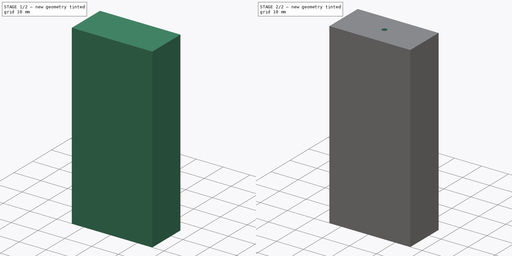
[diagram: build sequence overview — one tinted view per stage of 2, left to right]
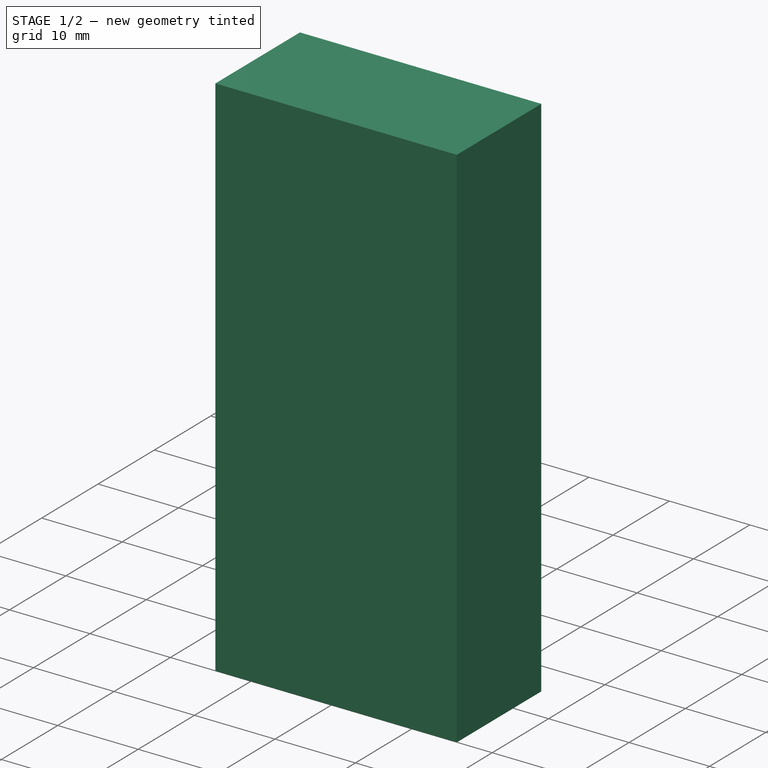
[diagram: stage 1 of 2 — iso view after this stage's code; geometry added in this stage tinted green]
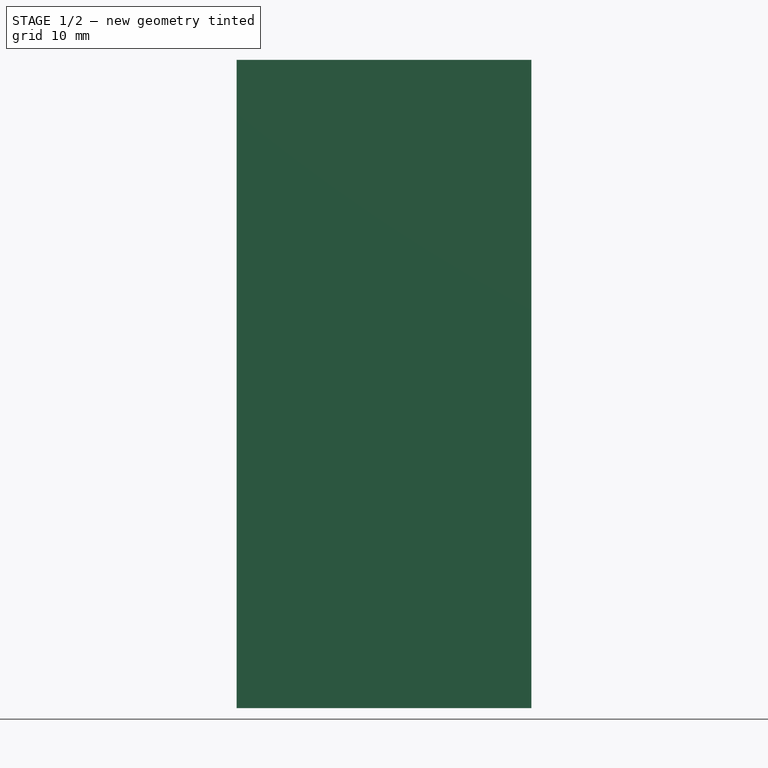
[diagram: stage 1 of 2 — front view after this stage's code; geometry added in this stage tinted green]
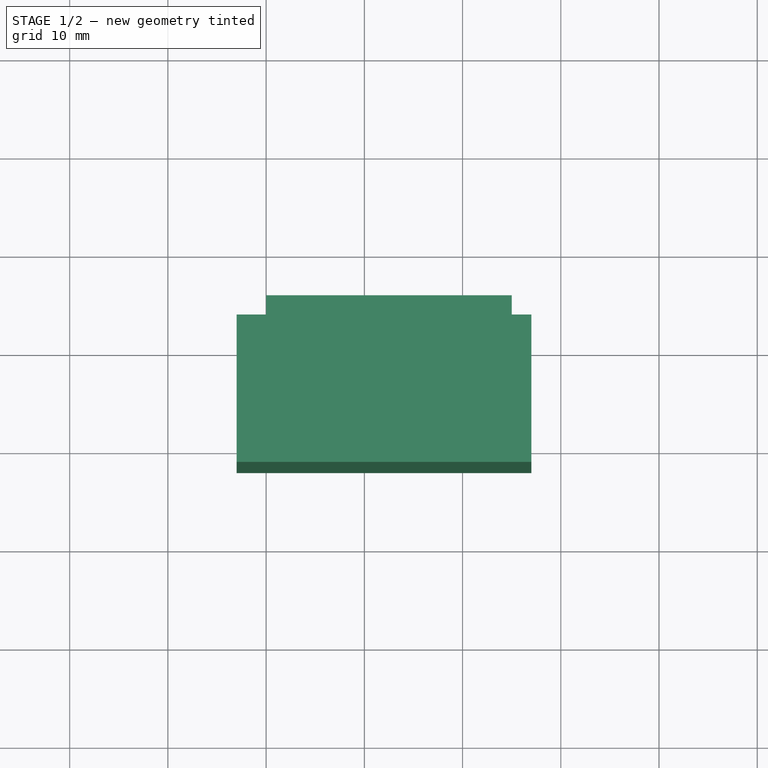
[diagram: stage 1 of 2 — top view after this stage's code; geometry added in this stage tinted green]
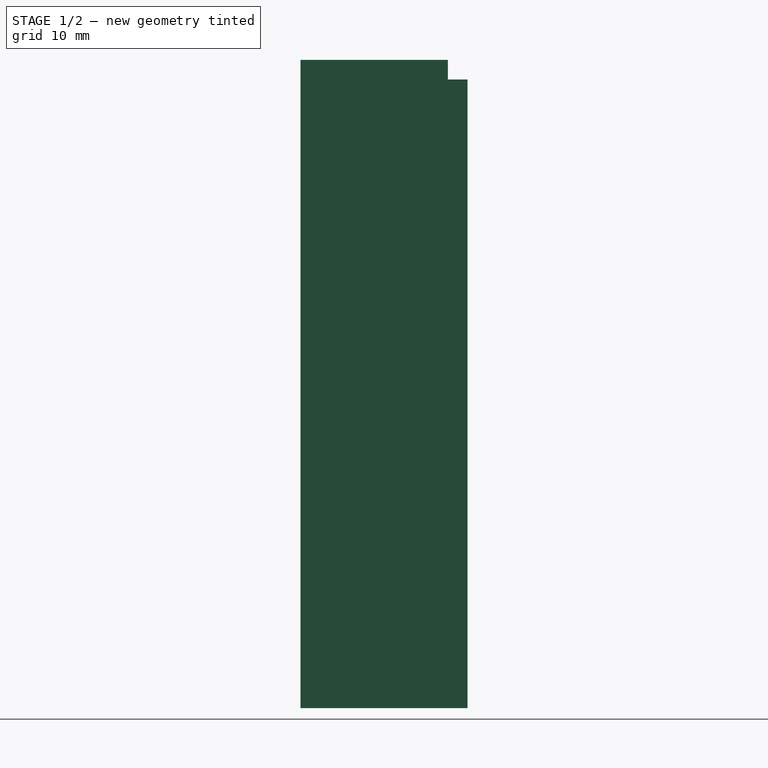
[diagram: stage 1 of 2 — right view after this stage's code; geometry added in this stage tinted green]
FCSTD DOCUMENT  (FreeCAD 0.14R3700 (Git))
Label: Tensor
License: CC-BY 3.0
LicenseURL: http://creativecommons.org/licenses/by/3.0/
objects: Part::Box×2, Part::Cut×1, Sketcher::SketchObject×1, PartDesign::Pocket×1
note: 6 computed .brp shape members not serialized (recipe doc carries the construction recipe); baked Part::Feature solids carry a one-line shape summary decoded from their .brp

FEATURE [Part::Box] Box  label="Cubo"
  Height = 64
  Length = 25
  Width = 15
FEATURE [Part::Box] Box001  label="Cubo001"
  Height = 66
  Length = 30
  Placement = pos=(-3,-2,0) rot=(0,0,1;0rad)
  Width = 15
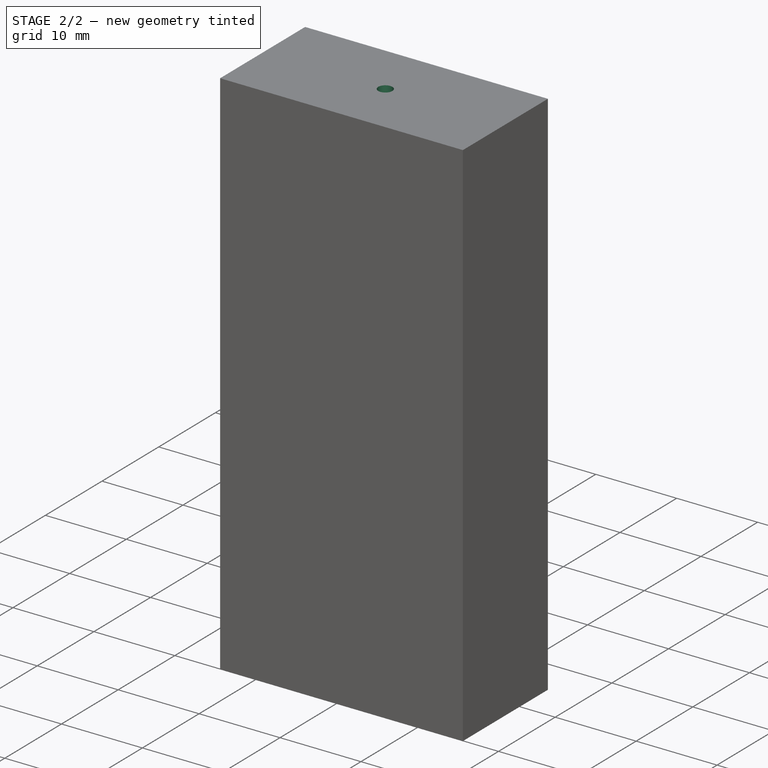
[diagram: stage 2 of 2 — iso view after this stage's code; geometry added in this stage tinted green]
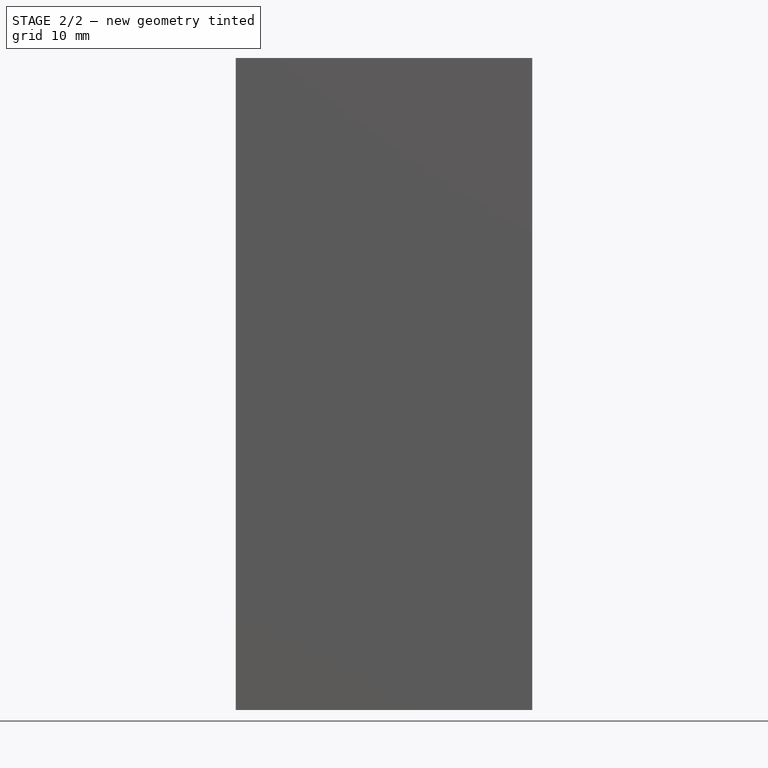
[diagram: stage 2 of 2 — front view after this stage's code; geometry added in this stage tinted green]
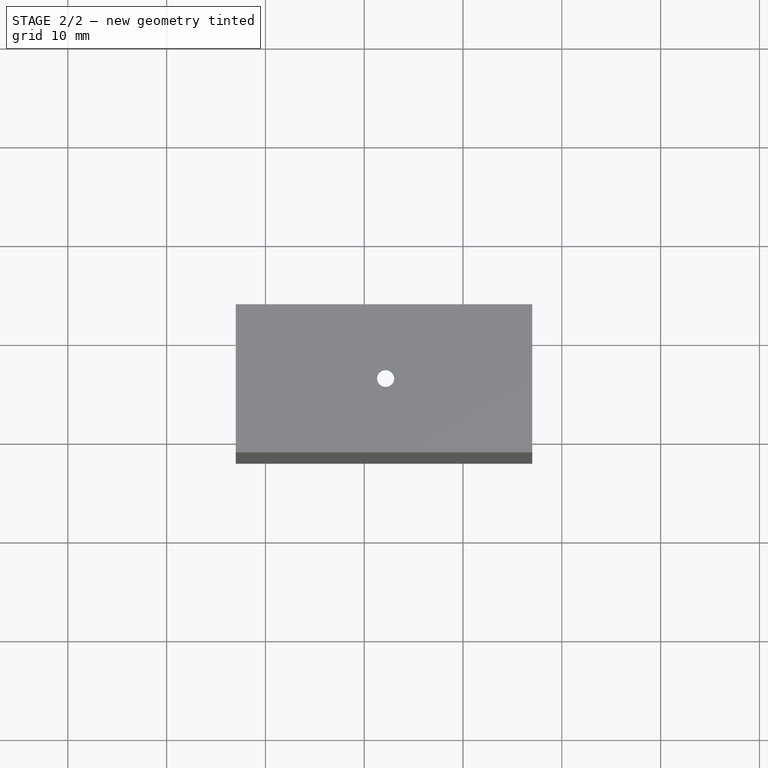
[diagram: stage 2 of 2 — top view after this stage's code; geometry added in this stage tinted green]
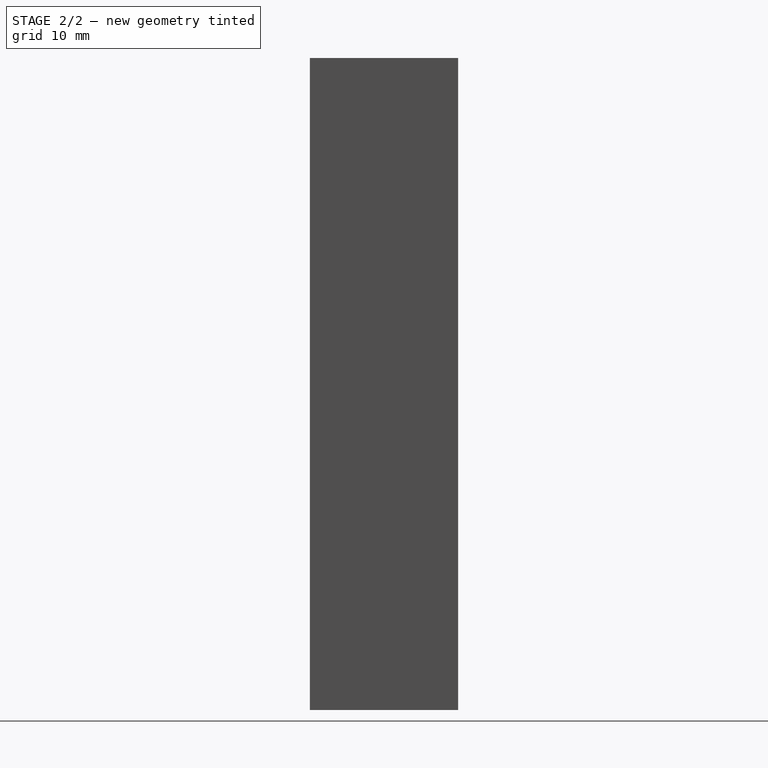
[diagram: stage 2 of 2 — right view after this stage's code; geometry added in this stage tinted green]
FEATURE [Part::Cut] Cut
  Base = -> Box001
  Tool = -> Box
FEATURE [Sketcher::SketchObject] Sketch
  ExternalGeometry = -> [Cut]
  Placement = pos=(0,0,66) rot=(0,0,1;0rad)
  Support = -> Cut [Face3]
  sketch-geometry (3):
    g0: Circle CenterX=12.1666 CenterY=5.5 CenterZ=0 NormalX=0 NormalY=0 NormalZ=1 Radius=0.87
    g1: LineSegment [constr] StartX=12.1666 StartY=5.5 StartZ=0 EndX=12.1666 EndY=-2 EndZ=0
    g2: LineSegment [constr] StartX=-3 StartY=5.5 StartZ=0 EndX=12.1666 EndY=5.5 EndZ=0
  constraints (9):
    c: Radius(g0) = 0.87
    c: Horizontal(g2)
    c: Vertical(g1)
    c: PointOnObject(g2,g-5)
    c: PointOnObject(g1,g-4)
    c: Coincident(g1,g2)
    c: Coincident(g0,g1)
    c: DistanceY(g1) = -7.5
    c: DistanceX(g2) = 15.1666
FEATURE [PartDesign::Pocket] Pocket
  Length = 5
  Sketch = -> Sketch
  Type = 0
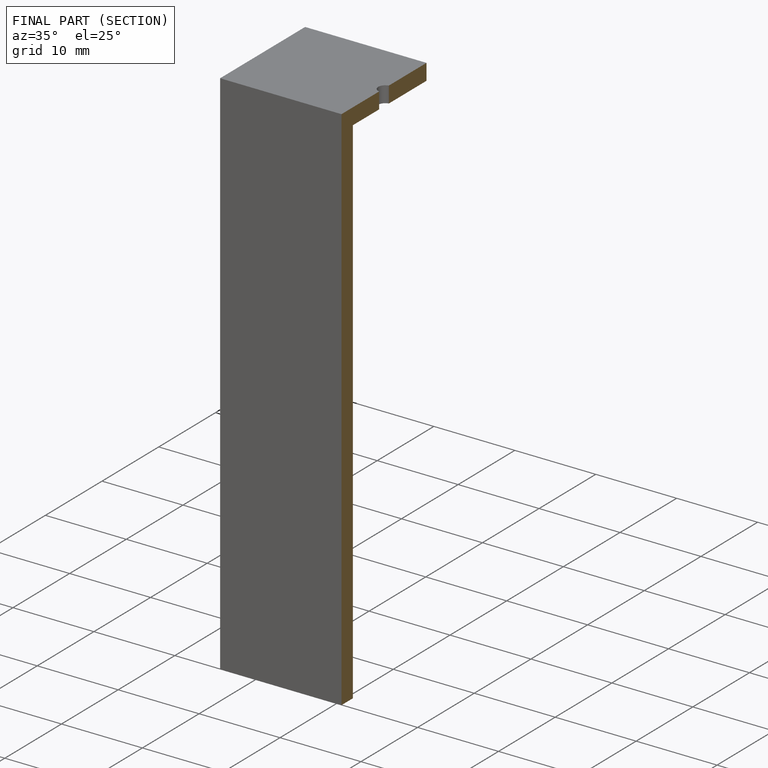
[diagram: finished part — half-section view (interior)]
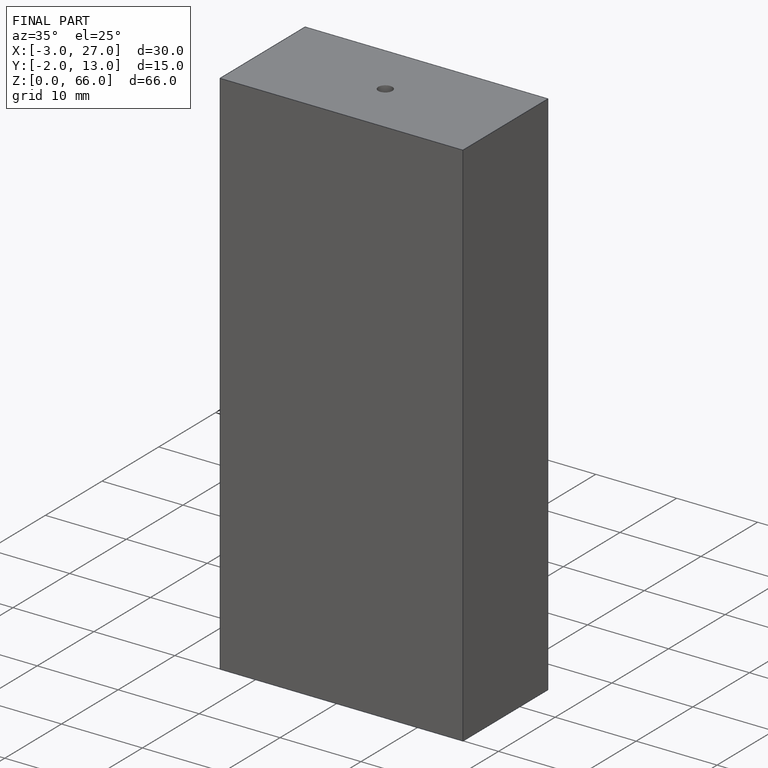
[diagram: finished part — iso view with bounding-box wireframe]
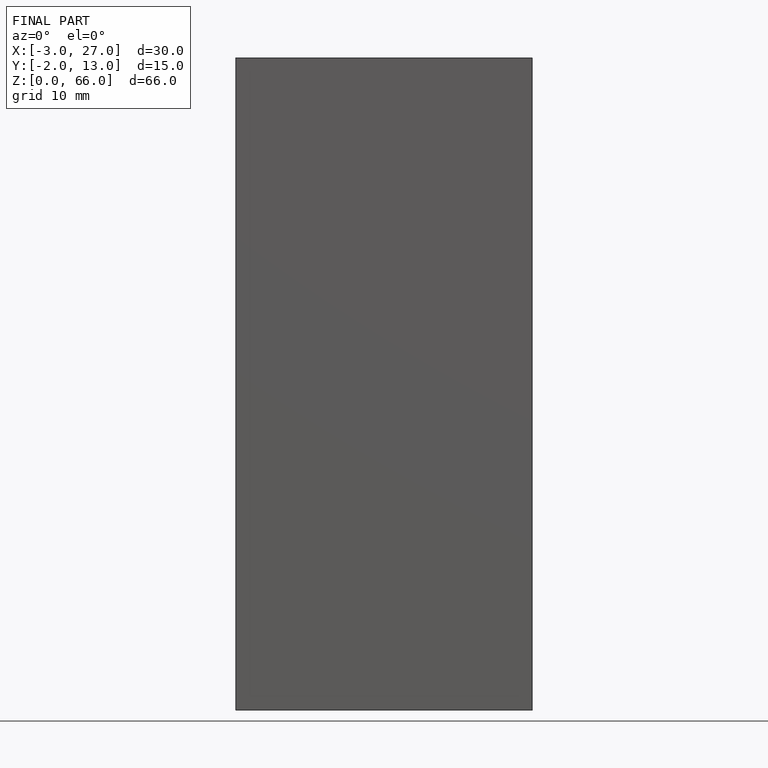
[diagram: finished part — front view with bounding-box wireframe]
